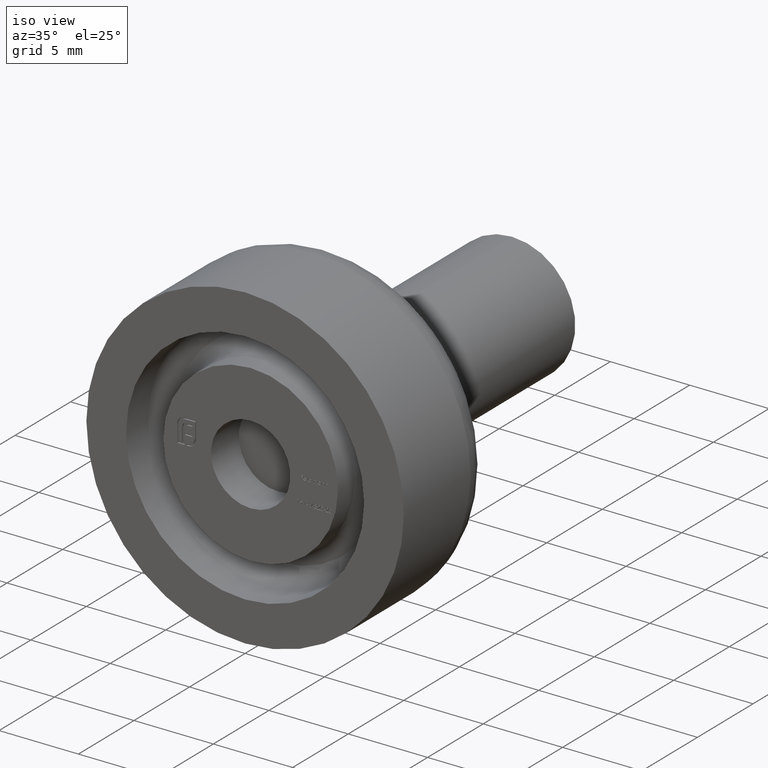
[diagram: clean part render]
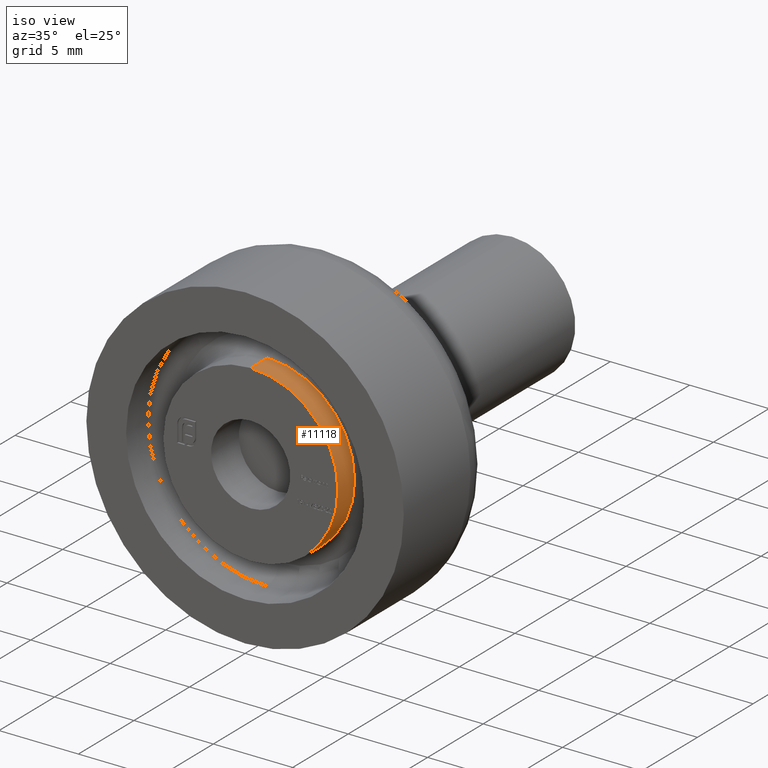
[diagram: same view with one face highlighted and labeled with its STEP entity id]
A machine part, iso view. The second image highlights one B-rep face of the part: STEP entity #11118.
In plain terms, the highlighted cylindrical surface (partial cylindrical patch) has radius 5.5 mm, axis along (-0, 1, -0).
Its self-contained STEP definition (entity closure, byte-faithful):
#552 = VERTEX_POINT ( 'NONE', #13000 ) ;
#1076 = EDGE_CURVE ( 'NONE', #1266, #6040, #6778, .T. ) ;
#1266 = VERTEX_POINT ( 'NONE', #14489 ) ;
#1370 = AXIS2_PLACEMENT_3D ( 'NONE', #14956, #8923, #8975 ) ;
#1372 = FACE_OUTER_BOUND ( 'NONE', #14436, .T. ) ;
#1696 = EDGE_CURVE ( 'NONE', #7142, #1266, #11128, .T. ) ;
#3196 = DIRECTION ( 'NONE',  ( 0.000000000000000000, 0.000000000000000000, -1.000000000000000000 ) ) ;
#4243 = AXIS2_PLACEMENT_3D ( 'NONE', #15103, #11434, #8974 ) ;
#4481 = DIRECTION ( 'NONE',  ( -0.000000000000000000, -1.000000000000000000, -0.000000000000000000 ) ) ;
#4586 = LINE ( 'NONE', #15498, #8351 ) ;
#5342 = CARTESIAN_POINT ( 'NONE',  ( 6.735557395310442023E-16, 0.5000000000000004441, -5.500000000000000000 ) ) ;
#6040 = VERTEX_POINT ( 'NONE', #12468 ) ;
#6778 = CIRCLE ( 'NONE', #4243, 5.500000000000000000 ) ;
#7142 = VERTEX_POINT ( 'NONE', #5342 ) ;
#7254 = CARTESIAN_POINT ( 'NONE',  ( 6.735557395310442023E-16, -15.55634918610404682, -5.500000000000000000 ) ) ;
#7810 = AXIS2_PLACEMENT_3D ( 'NONE', #9258, #4481, #3196 ) ;
#7903 = EDGE_CURVE ( 'NONE', #7142, #552, #15497, .T. ) ;
#7918 = VECTOR ( 'NONE', #11937, 1000.000000000000000 ) ;
#8351 = VECTOR ( 'NONE', #9569, 1000.000000000000000 ) ;
#8487 = CYLINDRICAL_SURFACE ( 'NONE', #1370, 5.500000000000000000 ) ;
#8687 = EDGE_CURVE ( 'NONE', #552, #6040, #4586, .T. ) ;
#8923 = DIRECTION ( 'NONE',  ( -0.000000000000000000, 1.000000000000000000, -0.000000000000000000 ) ) ;
#8974 = DIRECTION ( 'NONE',  ( 0.000000000000000000, 0.000000000000000000, -1.000000000000000000 ) ) ;
#8975 = DIRECTION ( 'NONE',  ( 0.000000000000000000, 0.000000000000000000, 1.000000000000000000 ) ) ;
#9258 = CARTESIAN_POINT ( 'NONE',  ( 0.000000000000000000, 0.5000000000000004441, 0.000000000000000000 ) ) ;
#9569 = DIRECTION ( 'NONE',  ( -0.000000000000000000, 1.000000000000000000, -0.000000000000000000 ) ) ;
#11118 = ADVANCED_FACE ( 'NONE', ( #1372 ), #8487, .T. ) ;
#11128 = LINE ( 'NONE', #7254, #7918 ) ;
#11434 = DIRECTION ( 'NONE',  ( 0.000000000000000000, -1.000000000000000000, 0.000000000000000000 ) ) ;
#11656 = ORIENTED_EDGE ( 'NONE', *, *, #7903, .F. ) ;
#11937 = DIRECTION ( 'NONE',  ( -0.000000000000000000, 1.000000000000000000, -0.000000000000000000 ) ) ;
#12099 = ORIENTED_EDGE ( 'NONE', *, *, #8687, .F. ) ;
#12411 = ORIENTED_EDGE ( 'NONE', *, *, #1696, .T. ) ;
#12468 = CARTESIAN_POINT ( 'NONE',  ( 0.000000000000000000, 2.000000000000001776, 5.500000000000000000 ) ) ;
#13000 = CARTESIAN_POINT ( 'NONE',  ( 0.000000000000000000, 0.5000000000000004441, 5.500000000000000000 ) ) ;
#13708 = ORIENTED_EDGE ( 'NONE', *, *, #1076, .T. ) ;
#14436 = EDGE_LOOP ( 'NONE', ( #11656, #12411, #13708, #12099 ) ) ;
#14489 = CARTESIAN_POINT ( 'NONE',  ( 6.735557395310442023E-16, 2.000000000000001776, -5.500000000000000000 ) ) ;
#14956 = CARTESIAN_POINT ( 'NONE',  ( 0.000000000000000000, -15.55634918610404682, 0.000000000000000000 ) ) ;
#15103 = CARTESIAN_POINT ( 'NONE',  ( 0.000000000000000000, 2.000000000000001776, 0.000000000000000000 ) ) ;
#15497 = CIRCLE ( 'NONE', #7810, 5.500000000000000000 ) ;
#15498 = CARTESIAN_POINT ( 'NONE',  ( 0.000000000000000000, -15.55634918610404682, 5.500000000000000000 ) ) ;